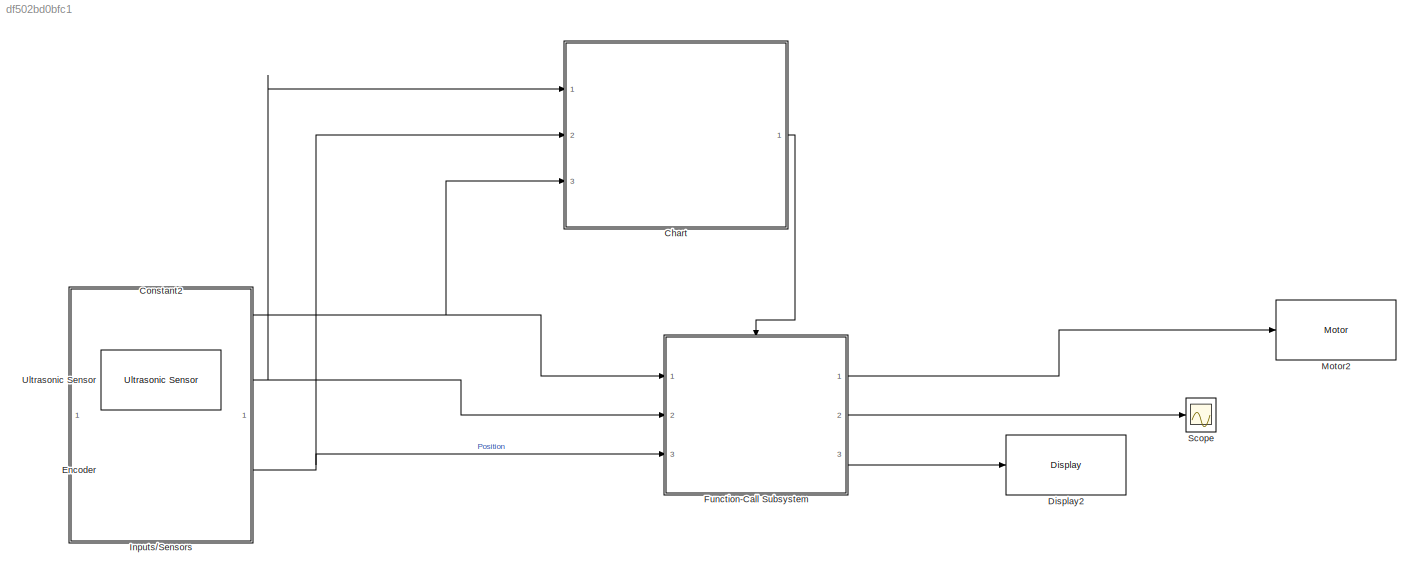
MODEL slx_df502bd0bfc1
KIND model
CONFIG AbsTol = auto
CONFIG FixedStep = auto
CONFIG MaxStep = auto
CONFIG MinStep = auto
CONFIG RelTol = 1e-3
CONFIG SampleTimeConstraint = Unconstrained
CONFIG Solver = ode45
CONFIG SolverMode = Auto
CONFIG SolverName = ode45
CONFIG StartTime = 0.0
CONFIG StopTime = 20
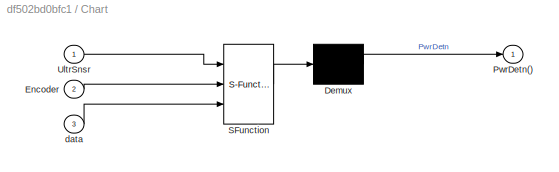
BLOCK [SubSystem] Chart
  ErrorFcn = Stateflow.Translate.translate
  PermitHierarchicalResolution = ExplicitOnly
  Ports = [3, 1]
  RequestExecContextInheritance = off
  SFBlockType = Chart
  TreatAsAtomicUnit = on
BLOCK [Demux] Chart/ Demux 
  Outputs = 1
  Ports = [1, 1]
BLOCK [S-Function] Chart/ SFunction 
  EnableBusSupport = on
  FunctionName = sf_sfun
  PortCounts = [3 1]
  Ports = [3, 1]
  Tag = Stateflow S-Function state1 3
BLOCK [Inport] Chart/Encoder
  IconDisplay = Port number
  Port = 2
BLOCK [Outport] Chart/PwrDetn()
  IconDisplay = Port number
BLOCK [Inport] Chart/UltrSnsr
  IconDisplay = Port number
BLOCK [Inport] Chart/data
  IconDisplay = Port number
  Port = 3
BLOCK [Constant] Constant2
  Value = 20
BLOCK [Reference] Display2  REF=legoev3lib/Display
  Ports = [1]
  SourceBlock = legoev3lib/Display
  SourceType = LEGO MINDSTORMS EV3 Display
  slcdFormat = Decimal
  slcdLine = 1
  slcdStr = Obj_Det
BLOCK [Reference] Encoder  REF=legoev3lib/Encoder
  Ports = [0, 1]
  SourceBlock = legoev3lib/Encoder
  SourceType = LEGO MINDSTORMS EV3 Encoder
  opMode = No reset
  portNumber = A
  sampleTime = 0.01
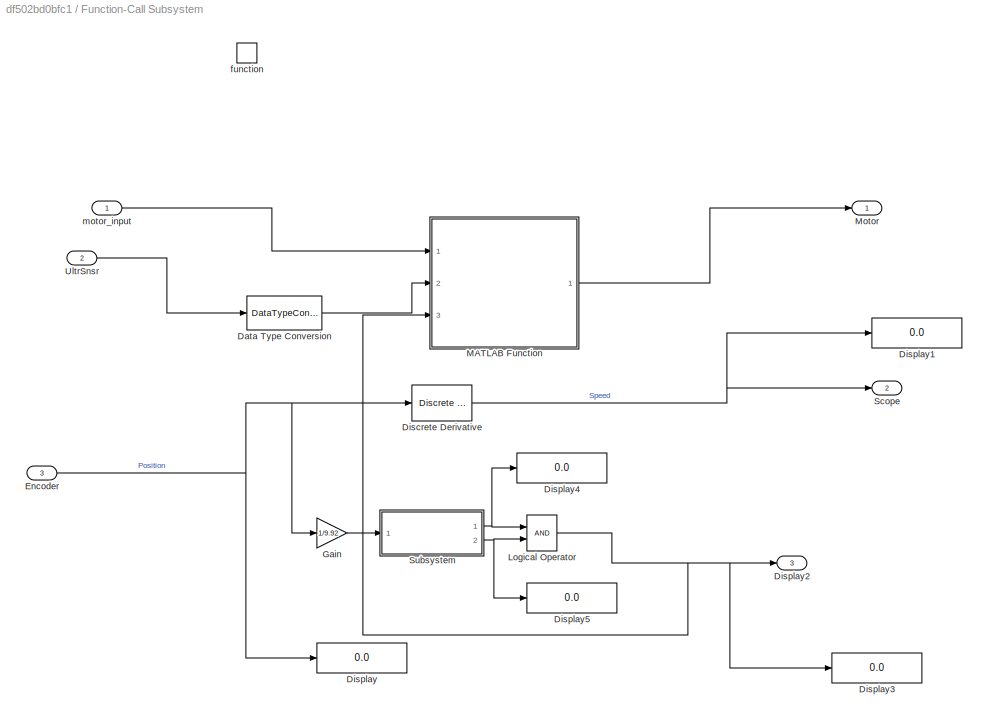
BLOCK [SubSystem] Function-Call Subsystem
  Ports = [3, 3, 0, 1]
  RequestExecContextInheritance = off
  TreatAsAtomicUnit = on
BLOCK [DataTypeConversion] Function-Call Subsystem/Data Type Conversion
  RndMeth = Floor
  SaturateOnIntegerOverflow = off
BLOCK [Reference] Function-Call Subsystem/Discrete Derivative  REF=simulink/Discrete/Discrete Derivative
  DoSatur = off
  ICPrevScaledInput = 800
  InputProcessing = Inherited
  LockScale = off
  OutDataType = fixdt(1, 16)
  OutDataTypeStr = double
  OutMax = []
  OutMin = []
  OutScaling = 2^-10
  OutputDataTypeScalingMode = double
  Ports = [1, 1]
  RndMeth = Floor
  SourceBlock = simulink/Discrete/Discrete Derivative
  SourceType = Discrete Derivative
  gainval = 1.0
BLOCK [Display] Function-Call Subsystem/Display
  Decimation = 1
  Ports = [1]
BLOCK [Display] Function-Call Subsystem/Display1
  Decimation = 1
  Ports = [1]
BLOCK [Outport] Function-Call Subsystem/Display2
  IconDisplay = Port number
  Port = 3
BLOCK [Display] Function-Call Subsystem/Display3
  Decimation = 1
  Ports = [1]
BLOCK [Display] Function-Call Subsystem/Display4
  Decimation = 1
  Ports = [1]
BLOCK [Display] Function-Call Subsystem/Display5
  Decimation = 1
  Ports = [1]
BLOCK [Inport] Function-Call Subsystem/Encoder
  IconDisplay = Port number
  Port = 3
BLOCK [Gain] Function-Call Subsystem/Gain
  Gain = 1/9.92
  OutDataTypeStr = Inherit: Inherit via internal rule
  ParamDataTypeStr = Inherit: Inherit via internal rule
  SaturateOnIntegerOverflow = off
BLOCK [Logic] Function-Call Subsystem/Logical Operator
  AllPortsSameDT = off
  OutDataTypeStr = boolean
  Ports = [2, 1]
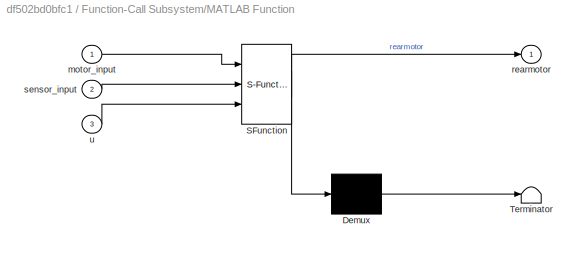
BLOCK [SubSystem] Function-Call Subsystem/MATLAB Function
  ErrorFcn = Stateflow.Translate.translate
  PermitHierarchicalResolution = ExplicitOnly
  Ports = [3, 1]
  RequestExecContextInheritance = off
  SFBlockType = MATLAB Function
  TreatAsAtomicUnit = on
BLOCK [Demux] Function-Call Subsystem/MATLAB Function/ Demux 
  Outputs = 1
  Ports = [1, 1]
BLOCK [S-Function] Function-Call Subsystem/MATLAB Function/ SFunction 
  EnableBusSupport = on
  FunctionName = sf_sfun
  PortCounts = [3 2]
  Ports = [3, 2]
  Tag = Stateflow S-Function state1 2
BLOCK [Terminator] Function-Call Subsystem/MATLAB Function/ Terminator 
BLOCK [Inport] Function-Call Subsystem/MATLAB Function/motor_input
  IconDisplay = Port number
BLOCK [Outport] Function-Call Subsystem/MATLAB Function/rearmotor
  IconDisplay = Port number
BLOCK [Inport] Function-Call Subsystem/MATLAB Function/sensor_input
  IconDisplay = Port number
  Port = 2
BLOCK [Inport] Function-Call Subsystem/MATLAB Function/u
  IconDisplay = Port number
  Port = 3
BLOCK [Outport] Function-Call Subsystem/Motor
  IconDisplay = Port number
BLOCK [Outport] Function-Call Subsystem/Scope
  IconDisplay = Port number
  Port = 2
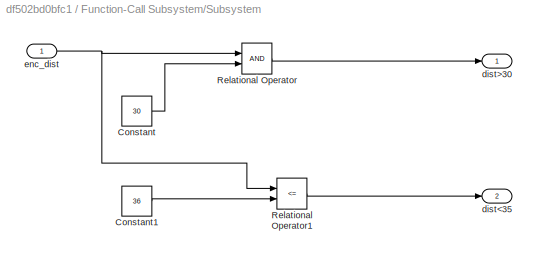
BLOCK [SubSystem] Function-Call Subsystem/Subsystem
  Ports = [1, 2]
  RequestExecContextInheritance = off
BLOCK [Constant] Function-Call Subsystem/Subsystem/Constant
  Value = 30
BLOCK [Constant] Function-Call Subsystem/Subsystem/Constant1
  Value = 36
BLOCK [RelationalOperator] Function-Call Subsystem/Subsystem/Relational Operator
  InputSameDT = off
  OutDataTypeStr = boolean
  Ports = [2, 1]
BLOCK [RelationalOperator] Function-Call Subsystem/Subsystem/Relational Operator1
  InputSameDT = off
  Operator = <=
  OutDataTypeStr = boolean
  Ports = [2, 1]
BLOCK [Outport] Function-Call Subsystem/Subsystem/dist<35
  IconDisplay = Port number
  Port = 2
BLOCK [Outport] Function-Call Subsystem/Subsystem/dist>30
  IconDisplay = Port number
BLOCK [Inport] Function-Call Subsystem/Subsystem/enc_dist
  IconDisplay = Port number
BLOCK [Inport] Function-Call Subsystem/UltrSnsr
  IconDisplay = Port number
  Port = 2
BLOCK [TriggerPort] Function-Call Subsystem/function
  Ports = []
  StatesWhenEnabling = held
  TriggerType = function-call
BLOCK [Inport] Function-Call Subsystem/motor_input
  IconDisplay = Port number
BLOCK [SubSystem] Inputs//Sensors
  Ports = []
  RequestExecContextInheritance = off
BLOCK [Reference] Motor2  REF=legoev3lib/Motor
  Ports = [1]
  SourceBlock = legoev3lib/Motor
  SourceType = LEGO MINDSTORMS EV3 Motor
  sportNumber = A
  sstopAction = Brake
BLOCK [Scope] Scope
  DataFormat = StructureWithTime
  Floating = off
  LimitDataPoints = off
  NumInputPorts = 1
  Ports = [1]
  SampleTime = 0
  SaveName = acqData
  SaveToWorkspace = on
  YMax = 80
  YMin = -90
  ZoomMode = yonly
BLOCK [Reference] Ultrasonic Sensor  REF=legoev3lib/Ultrasonic Sensor
  PortNumber = 1
  Ports = [0, 1]
  SourceBlock = legoev3lib/Ultrasonic Sensor
  SourceType = LEGO MINDSTORMS EV3 Ultrasonic Sensor
  sampleTime = 0.01
LINE Chart:1 -> Function-Call Subsystem:trigger
NET Constant2:1 -> Chart:3, Function-Call Subsystem:1
NET Encoder:1 -> Chart:2, Function-Call Subsystem:3
LINE Function-Call Subsystem/Data Type Conversion:1 -> Function-Call Subsystem/MATLAB Function:2
NET Function-Call Subsystem/Discrete Derivative:1 -> Function-Call Subsystem/Display1:1, Function-Call Subsystem/Scope:1
NET Function-Call Subsystem/Encoder:1 -> Function-Call Subsystem/Discrete Derivative:1, Function-Call Subsystem/Display:1, Function-Call Subsystem/Gain:1
LINE Function-Call Subsystem/Gain:1 -> Function-Call Subsystem/Subsystem:1
NET Function-Call Subsystem/Logical Operator:1 -> Function-Call Subsystem/Display2:1, Function-Call Subsystem/Display3:1, Function-Call Subsystem/MATLAB Function:3
LINE Function-Call Subsystem/MATLAB Function:1 -> Function-Call Subsystem/Motor:1
LINE Function-Call Subsystem/Subsystem/Constant1:1 -> Function-Call Subsystem/Subsystem/Relational Operator1:2
LINE Function-Call Subsystem/Subsystem/Constant:1 -> Function-Call Subsystem/Subsystem/Relational Operator:2
LINE Function-Call Subsystem/Subsystem/Relational Operator1:1 -> Function-Call Subsystem/Subsystem/dist<35:1
LINE Function-Call Subsystem/Subsystem/Relational Operator:1 -> Function-Call Subsystem/Subsystem/dist>30:1
NET Function-Call Subsystem/Subsystem/enc_dist:1 -> Function-Call Subsystem/Subsystem/Relational Operator1:1, Function-Call Subsystem/Subsystem/Relational Operator:1
NET Function-Call Subsystem/Subsystem:1 -> Function-Call Subsystem/Display4:1, Function-Call Subsystem/Logical Operator:1
NET Function-Call Subsystem/Subsystem:2 -> Function-Call Subsystem/Display5:1, Function-Call Subsystem/Logical Operator:2
LINE Function-Call Subsystem/UltrSnsr:1 -> Function-Call Subsystem/Data Type Conversion:1
LINE Function-Call Subsystem/motor_input:1 -> Function-Call Subsystem/MATLAB Function:1
LINE Function-Call Subsystem:1 -> Motor2:1
LINE Function-Call Subsystem:2 -> Scope:1
LINE Function-Call Subsystem:3 -> Display2:1
NET Ultrasonic Sensor:1 -> Chart:1, Function-Call Subsystem:2
note: NET lines group one-source signal fan-out (src -> all destinations, sorted); 1:1 wires keep LINE
CHART Function-Call
Subsystem/MATLAB Function states=1 transitions=1
  STATE_LABEL 'eML_blk_kernel()'
  STATE_LABEL 'SCRIPT:\nfunction rearmotor = fcn(motor_input,sensor_input,u)\n%#codegen\nif(sensor_input>4)&&(sensor_input<=20)&& (u==1)\n    rearmotor=motor_input;\n%elseif(sensor_input>20)&&(sensor_input<=35)\n %   rearmotor=motor_input;\nelse\n    rearmotor=0;\nend\nend'
CHART Chart states=1 transitions=1
  STATE_LABEL 'ParkSpotDectd\ndu: send(PwrDetn);'
